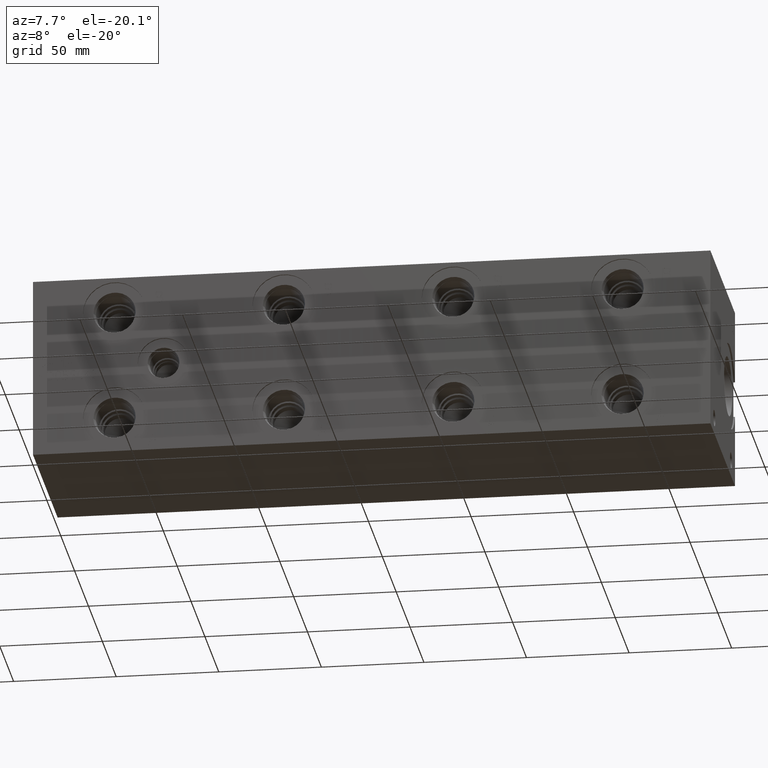
[diagram: clean part render]
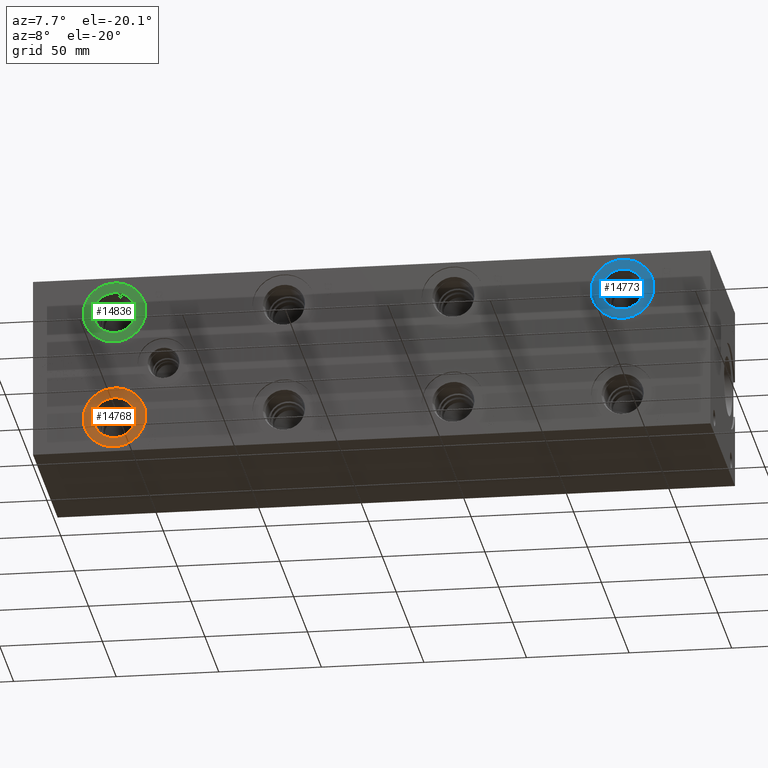
[diagram: same view with three faces highlighted in distinct colors, each labeled with its STEP entity id]
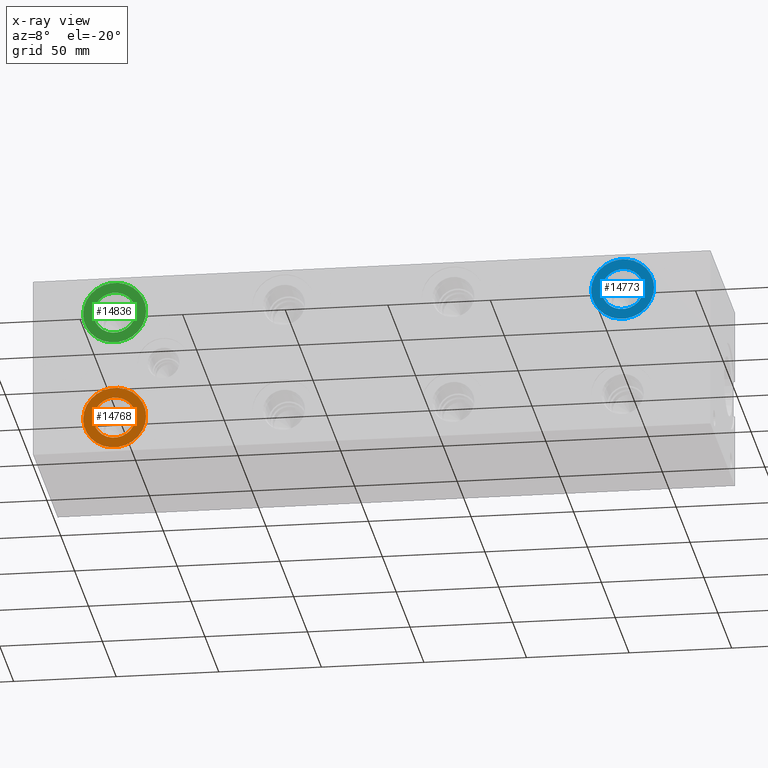
[diagram: x-ray of the same camera — body ghosted, the three highlighted faces saturated]
A machine part, auxiliary view with three faces highlighted in distinct colors.
The next image is the same camera in x-ray (body ghosted, the three faces saturated) — at least one of them is partly hidden behind the body in this view.
Their STEP definitions:

[orange] entity #14768 — the highlighted planar face has unit normal (0, 1, 0).
#321=CIRCLE('',#15490,15.3162);
#322=CIRCLE('',#15491,15.3162);
#323=CIRCLE('',#15493,10.2997);
#324=CIRCLE('',#15494,10.2997);
#699=FACE_BOUND('',#2753,.T.);
#1900=FACE_OUTER_BOUND('',#2752,.T.);
#2752=EDGE_LOOP('',(#12323,#12324));
#2753=EDGE_LOOP('',(#12325,#12326));
#6689=VERTEX_POINT('',#24974);
#6690=VERTEX_POINT('',#24976);
#6691=VERTEX_POINT('',#24980);
#6692=VERTEX_POINT('',#24981);
#8656=EDGE_CURVE('',#6689,#6690,#321,.T.);
#8657=EDGE_CURVE('',#6690,#6689,#322,.T.);
#8658=EDGE_CURVE('',#6691,#6692,#323,.T.);
#8659=EDGE_CURVE('',#6692,#6691,#324,.T.);
#12323=ORIENTED_EDGE('',*,*,#8657,.F.);
#12324=ORIENTED_EDGE('',*,*,#8656,.F.);
#12325=ORIENTED_EDGE('',*,*,#8658,.T.);
#12326=ORIENTED_EDGE('',*,*,#8659,.T.);
#13625=PLANE('',#15492);
#14768=ADVANCED_FACE('',(#1900,#699),#13625,.F.);
#15490=AXIS2_PLACEMENT_3D('',#24977,#18172,#18173);
#15491=AXIS2_PLACEMENT_3D('',#24978,#18174,#18175);
#15492=AXIS2_PLACEMENT_3D('',#24979,#18176,#18177);
#15493=AXIS2_PLACEMENT_3D('',#24982,#18178,#18179);
#15494=AXIS2_PLACEMENT_3D('',#24983,#18180,#18181);
#18172=DIRECTION('center_axis',(0.,1.,0.));
#18173=DIRECTION('ref_axis',(1.,0.,0.));
#18174=DIRECTION('center_axis',(0.,1.,0.));
#18175=DIRECTION('ref_axis',(1.,0.,0.));
#18176=DIRECTION('center_axis',(0.,1.,0.));
#18177=DIRECTION('ref_axis',(0.,0.,1.));
#18178=DIRECTION('center_axis',(0.,1.,0.));
#18179=DIRECTION('ref_axis',(1.,0.,0.));
#18180=DIRECTION('center_axis',(0.,1.,0.));
#18181=DIRECTION('ref_axis',(1.,0.,0.));
#24974=CARTESIAN_POINT('',(24.3586,0.7874,17.4498));
#24976=CARTESIAN_POINT('',(54.991,0.7874,17.4498));
#24977=CARTESIAN_POINT('Origin',(39.6748,0.7874,17.4498));
#24978=CARTESIAN_POINT('Origin',(39.6748,0.7874,17.4498));
#24979=CARTESIAN_POINT('Origin',(49.9745,0.7874,17.4498));
#24980=CARTESIAN_POINT('',(49.9745,0.7874,17.4498));
#24981=CARTESIAN_POINT('',(29.3751,0.787400000000001,17.4498));
#24982=CARTESIAN_POINT('Origin',(39.6748,0.7874,17.4498));
#24983=CARTESIAN_POINT('Origin',(39.6748,0.7874,17.4498));

[blue] entity #14773 — the highlighted planar face has unit normal (0, 1, 0).
#330=CIRCLE('',#15504,15.3162);
#331=CIRCLE('',#15505,15.3162);
#332=CIRCLE('',#15507,10.2997);
#333=CIRCLE('',#15508,10.2997);
#700=FACE_BOUND('',#2759,.T.);
#1905=FACE_OUTER_BOUND('',#2758,.T.);
#2758=EDGE_LOOP('',(#12350,#12351));
#2759=EDGE_LOOP('',(#12352,#12353));
#6698=VERTEX_POINT('',#25001);
#6699=VERTEX_POINT('',#25003);
#6700=VERTEX_POINT('',#25007);
#6701=VERTEX_POINT('',#25008);
#8669=EDGE_CURVE('',#6698,#6699,#330,.T.);
#8670=EDGE_CURVE('',#6699,#6698,#331,.T.);
#8671=EDGE_CURVE('',#6700,#6701,#332,.T.);
#8672=EDGE_CURVE('',#6701,#6700,#333,.T.);
#12350=ORIENTED_EDGE('',*,*,#8670,.F.);
#12351=ORIENTED_EDGE('',*,*,#8669,.F.);
#12352=ORIENTED_EDGE('',*,*,#8671,.T.);
#12353=ORIENTED_EDGE('',*,*,#8672,.T.);
#13626=PLANE('',#15506);
#14773=ADVANCED_FACE('',(#1905,#700),#13626,.F.);
#15504=AXIS2_PLACEMENT_3D('',#25004,#18204,#18205);
#15505=AXIS2_PLACEMENT_3D('',#25005,#18206,#18207);
#15506=AXIS2_PLACEMENT_3D('',#25006,#18208,#18209);
#15507=AXIS2_PLACEMENT_3D('',#25009,#18210,#18211);
#15508=AXIS2_PLACEMENT_3D('',#25010,#18212,#18213);
#18204=DIRECTION('center_axis',(0.,1.,0.));
#18205=DIRECTION('ref_axis',(1.,0.,0.));
#18206=DIRECTION('center_axis',(0.,1.,0.));
#18207=DIRECTION('ref_axis',(1.,0.,0.));
#18208=DIRECTION('center_axis',(0.,1.,0.));
#18209=DIRECTION('ref_axis',(0.,0.,1.));
#18210=DIRECTION('center_axis',(0.,1.,0.));
#18211=DIRECTION('ref_axis',(1.,0.,0.));
#18212=DIRECTION('center_axis',(0.,1.,0.));
#18213=DIRECTION('ref_axis',(1.,0.,0.));
#25001=CARTESIAN_POINT('',(272.0086,0.7874,71.4502));
#25003=CARTESIAN_POINT('',(302.641,0.7874,71.4502));
#25004=CARTESIAN_POINT('Origin',(287.3248,0.7874,71.4502));
#25005=CARTESIAN_POINT('Origin',(287.3248,0.7874,71.4502));
#25006=CARTESIAN_POINT('Origin',(297.6245,0.7874,71.4502));
#25007=CARTESIAN_POINT('',(297.6245,0.7874,71.4502));
#25008=CARTESIAN_POINT('',(277.0251,0.7874,71.4502));
#25009=CARTESIAN_POINT('Origin',(287.3248,0.7874,71.4502));
#25010=CARTESIAN_POINT('Origin',(287.3248,0.7874,71.4502));

[green] entity #14836 — the highlighted planar face has unit normal (0, 1, 0).
#422=CIRCLE('',#15659,15.3162);
#423=CIRCLE('',#15660,15.3162);
#424=CIRCLE('',#15662,10.2997);
#425=CIRCLE('',#15663,10.2997);
#711=FACE_BOUND('',#2833,.T.);
#1968=FACE_OUTER_BOUND('',#2832,.T.);
#2832=EDGE_LOOP('',(#12647,#12648));
#2833=EDGE_LOOP('',(#12649,#12650));
#6798=VERTEX_POINT('',#25308);
#6799=VERTEX_POINT('',#25310);
#6800=VERTEX_POINT('',#25314);
#6801=VERTEX_POINT('',#25315);
#8813=EDGE_CURVE('',#6798,#6799,#422,.T.);
#8814=EDGE_CURVE('',#6799,#6798,#423,.T.);
#8815=EDGE_CURVE('',#6800,#6801,#424,.T.);
#8816=EDGE_CURVE('',#6801,#6800,#425,.T.);
#12647=ORIENTED_EDGE('',*,*,#8814,.F.);
#12648=ORIENTED_EDGE('',*,*,#8813,.F.);
#12649=ORIENTED_EDGE('',*,*,#8815,.T.);
#12650=ORIENTED_EDGE('',*,*,#8816,.T.);
#13637=PLANE('',#15661);
#14836=ADVANCED_FACE('',(#1968,#711),#13637,.F.);
#15659=AXIS2_PLACEMENT_3D('',#25311,#18566,#18567);
#15660=AXIS2_PLACEMENT_3D('',#25312,#18568,#18569);
#15661=AXIS2_PLACEMENT_3D('',#25313,#18570,#18571);
#15662=AXIS2_PLACEMENT_3D('',#25316,#18572,#18573);
#15663=AXIS2_PLACEMENT_3D('',#25317,#18574,#18575);
#18566=DIRECTION('center_axis',(0.,1.,0.));
#18567=DIRECTION('ref_axis',(1.,0.,0.));
#18568=DIRECTION('center_axis',(0.,1.,0.));
#18569=DIRECTION('ref_axis',(1.,0.,0.));
#18570=DIRECTION('center_axis',(0.,1.,0.));
#18571=DIRECTION('ref_axis',(0.,0.,1.));
#18572=DIRECTION('center_axis',(0.,1.,0.));
#18573=DIRECTION('ref_axis',(1.,0.,0.));
#18574=DIRECTION('center_axis',(0.,1.,0.));
#18575=DIRECTION('ref_axis',(1.,0.,0.));
#25308=CARTESIAN_POINT('',(24.3586,0.7874,71.4502));
#25310=CARTESIAN_POINT('',(54.991,0.7874,71.4502));
#25311=CARTESIAN_POINT('Origin',(39.6748,0.7874,71.4502));
#25312=CARTESIAN_POINT('Origin',(39.6748,0.7874,71.4502));
#25313=CARTESIAN_POINT('Origin',(49.9745,0.7874,71.4502));
#25314=CARTESIAN_POINT('',(49.9745,0.7874,71.4502));
#25315=CARTESIAN_POINT('',(29.3751,0.787400000000001,71.4502));
#25316=CARTESIAN_POINT('Origin',(39.6748,0.7874,71.4502));
#25317=CARTESIAN_POINT('Origin',(39.6748,0.7874,71.4502));